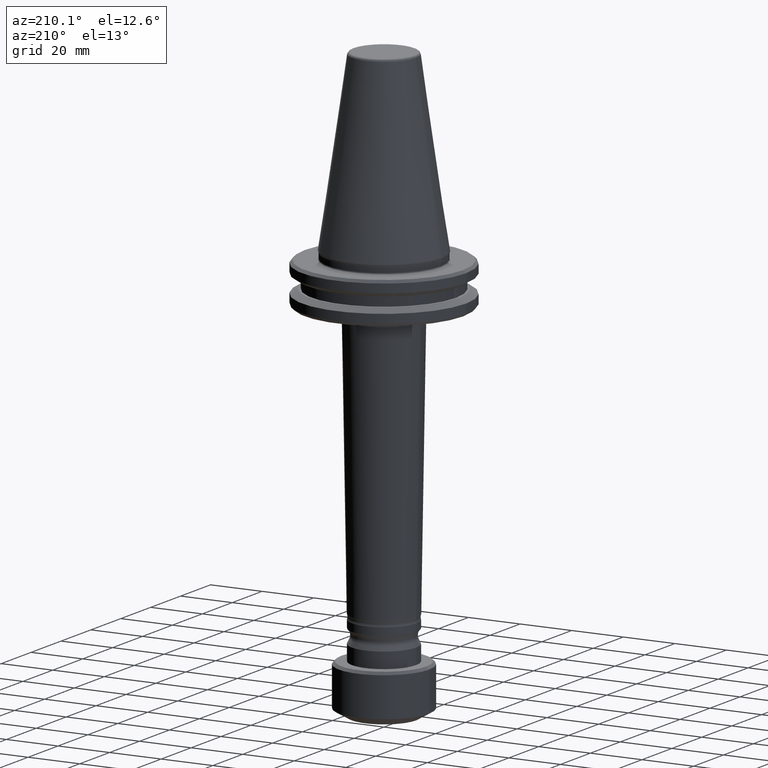
[diagram: clean part render]
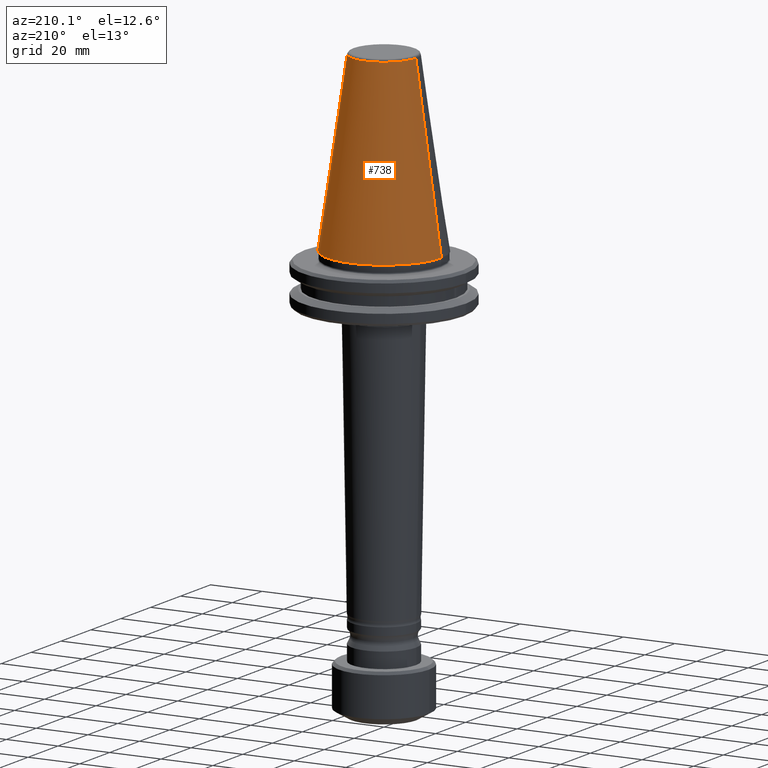
[diagram: same view with one face highlighted and labeled with its STEP entity id]
A machine part, auxiliary view. The second image highlights one B-rep face of the part: STEP entity #738.
In plain terms, the highlighted conical surface has half-angle 8.297 deg.
Its self-contained STEP definition (entity closure, byte-faithful):
#11 = CONICAL_SURFACE ( 'NONE', #765, 22.22499999999893900, 0.1448138461595623300 ) ;
#45 = CARTESIAN_POINT ( 'NONE',  ( 0.0000000000000000000, 0.0000000000000000000, 216.0443082268835700 ) ) ;
#55 = VECTOR ( 'NONE', #1224, 1000.000000000000100 ) ;
#77 = LINE ( 'NONE', #1167, #55 ) ;
#89 = LINE ( 'NONE', #1160, #166 ) ;
#166 = VECTOR ( 'NONE', #1251, 1000.000000000000100 ) ;
#167 = DIRECTION ( 'NONE',  ( 1.000000000000000000, 0.0000000000000000000, 0.0000000000000000000 ) ) ;
#196 = EDGE_LOOP ( 'NONE', ( #481, #1462, #1031, #1316 ) ) ;
#273 = CARTESIAN_POINT ( 'NONE',  ( -22.22499999999893900, 2.721777511104862700E-015, 148.5000000000000300 ) ) ;
#342 = EDGE_CURVE ( 'NONE', #786, #912, #938, .T. ) ;
#440 = CARTESIAN_POINT ( 'NONE',  ( -12.37469540292068800, 0.0000000000000000000, 216.0443082268835700 ) ) ;
#481 = ORIENTED_EDGE ( 'NONE', *, *, #1450, .F. ) ;
#500 = AXIS2_PLACEMENT_3D ( 'NONE', #45, #923, #167 ) ;
#527 = DIRECTION ( 'NONE',  ( -1.000000000000000000, 0.0000000000000000000, 0.0000000000000000000 ) ) ;
#535 = VERTEX_POINT ( 'NONE', #1260 ) ;
#738 = ADVANCED_FACE ( 'NONE', ( #963 ), #11, .T. ) ;
#765 = AXIS2_PLACEMENT_3D ( 'NONE', #813, #1335, #527 ) ;
#768 = EDGE_CURVE ( 'NONE', #1497, #912, #77, .T. ) ;
#786 = VERTEX_POINT ( 'NONE', #902 ) ;
#813 = CARTESIAN_POINT ( 'NONE',  ( 0.0000000000000000000, 0.0000000000000000000, 148.5000000000000300 ) ) ;
#817 = EDGE_CURVE ( 'NONE', #535, #786, #89, .T. ) ;
#855 = CIRCLE ( 'NONE', #500, 12.37469540292068800 ) ;
#902 = CARTESIAN_POINT ( 'NONE',  ( 22.22499999999893900, 0.0000000000000000000, 148.5000000000000300 ) ) ;
#912 = VERTEX_POINT ( 'NONE', #273 ) ;
#923 = DIRECTION ( 'NONE',  ( -0.0000000000000000000, -0.0000000000000000000, 1.000000000000000000 ) ) ;
#938 = CIRCLE ( 'NONE', #1020, 22.22499999999893900 ) ;
#943 = DIRECTION ( 'NONE',  ( 1.000000000000000000, 0.0000000000000000000, 0.0000000000000000000 ) ) ;
#963 = FACE_OUTER_BOUND ( 'NONE', #196, .T. ) ;
#1020 = AXIS2_PLACEMENT_3D ( 'NONE', #1472, #1302, #943 ) ;
#1031 = ORIENTED_EDGE ( 'NONE', *, *, #342, .T. ) ;
#1160 = CARTESIAN_POINT ( 'NONE',  ( 22.22499999999893900, 2.721777511104862700E-015, 148.5000000000000300 ) ) ;
#1167 = CARTESIAN_POINT ( 'NONE',  ( -22.22499999999893900, 0.0000000000000000000, 148.5000000000000300 ) ) ;
#1224 = DIRECTION ( 'NONE',  ( -0.1443082268835100500, 0.0000000000000000000, -0.9895327865481452500 ) ) ;
#1251 = DIRECTION ( 'NONE',  ( 0.1443082268835100500, 1.767266081435205900E-017, -0.9895327865481452500 ) ) ;
#1260 = CARTESIAN_POINT ( 'NONE',  ( 12.37469540292068800, 2.118620311332945800E-015, 216.0443082268835700 ) ) ;
#1302 = DIRECTION ( 'NONE',  ( -0.0000000000000000000, -0.0000000000000000000, 1.000000000000000000 ) ) ;
#1316 = ORIENTED_EDGE ( 'NONE', *, *, #768, .F. ) ;
#1335 = DIRECTION ( 'NONE',  ( 0.0000000000000000000, 0.0000000000000000000, -1.000000000000000000 ) ) ;
#1450 = EDGE_CURVE ( 'NONE', #535, #1497, #855, .T. ) ;
#1462 = ORIENTED_EDGE ( 'NONE', *, *, #817, .T. ) ;
#1472 = CARTESIAN_POINT ( 'NONE',  ( 0.0000000000000000000, 0.0000000000000000000, 148.5000000000000300 ) ) ;
#1497 = VERTEX_POINT ( 'NONE', #440 ) ;